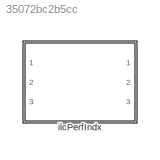
MODEL slx_35072bc2b5cc
KIND library
CONFIG AbsTol = auto
CONFIG EnableMultiTasking = off
CONFIG FixedStep = auto
CONFIG MaxStep = auto
CONFIG MinStep = auto
CONFIG RelTol = 1e-3
CONFIG SampleTimeConstraint = Unconstrained
CONFIG Solver = VariableStepAuto
CONFIG SolverName = VariableStepAuto
CONFIG StartTime = 0.0
CONFIG StopTime = 10.0
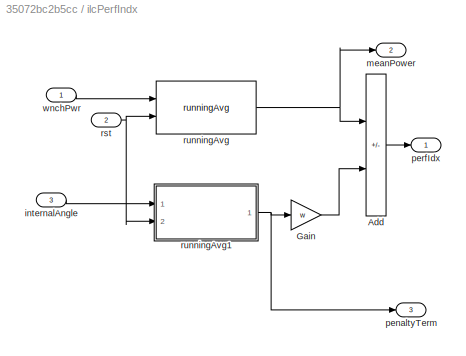
BLOCK [SubSystem] ilcPerfIndx
  Ports = [3, 3]
  RequestExecContextInheritance = off
BLOCK [Sum] ilcPerfIndx/Add
  IconShape = rectangular
  Inputs = +-
  Ports = [2, 1]
BLOCK [Gain] ilcPerfIndx/Gain
  Gain = w
BLOCK [Inport] ilcPerfIndx/internalAngle
  Port = 3
  PortDimensions = 1
BLOCK [Outport] ilcPerfIndx/meanPower
  Port = 2
  PortDimensions = 1
  VectorParamsAs1DForOutWhenUnconnected = off
BLOCK [Outport] ilcPerfIndx/penaltyTerm
  Port = 3
  PortDimensions = 1
  VectorParamsAs1DForOutWhenUnconnected = off
BLOCK [Outport] ilcPerfIndx/perfIdx
  PortDimensions = 1
  VectorParamsAs1DForOutWhenUnconnected = off
BLOCK [Inport] ilcPerfIndx/rst
  Port = 2
  PortDimensions = 1
BLOCK [Reference] ilcPerfIndx/runningAvg  REF=runningAvg_ul/runningAvg
  Ports = [2, 1]
  SourceBlock = runningAvg_ul/runningAvg
  SourceType = SubSystem
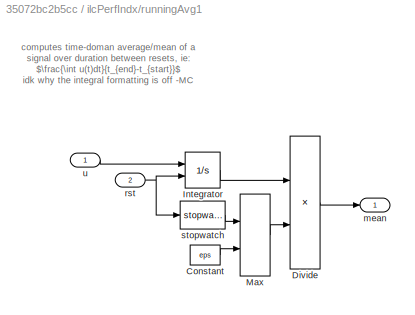
BLOCK [SubSystem] ilcPerfIndx/runningAvg1
  Ports = [2, 1]
  RequestExecContextInheritance = off
BLOCK [Constant] ilcPerfIndx/runningAvg1/Constant
  Value = eps
BLOCK [Product] ilcPerfIndx/runningAvg1/Divide
  Inputs = */
  Ports = [2, 1]
BLOCK [Integrator] ilcPerfIndx/runningAvg1/Integrator
  ExternalReset = rising
  Ports = [2, 1]
BLOCK [MinMax] ilcPerfIndx/runningAvg1/Max
  Function = max
  Inputs = 2
  Ports = [2, 1]
BLOCK [Outport] ilcPerfIndx/runningAvg1/mean
  VectorParamsAs1DForOutWhenUnconnected = off
BLOCK [Inport] ilcPerfIndx/runningAvg1/rst
  Port = 2
BLOCK [Reference] ilcPerfIndx/runningAvg1/stopwatch  REF=stopwatch_ul/stopwatch  (lib defined in slx_5231e8830116, slx_6b86a6863970)
  Ports = [1, 1]
  SourceBlock = stopwatch_ul/stopwatch
  SourceType = SubSystem
BLOCK [Inport] ilcPerfIndx/runningAvg1/u
BLOCK [Inport] ilcPerfIndx/wnchPwr
  PortDimensions = 1
ANNOTATION ilcPerfIndx/runningAvg1: computes time-doman average/mean of a signal over duration between resets, ie: $\frac{\int u(t)dt}{t_{end}-t_{start}}$ idk why the integral formatting is off -MC
LINE ilcPerfIndx/Add:1 -> ilcPerfIndx/perfIdx:1
LINE ilcPerfIndx/Gain:1 -> ilcPerfIndx/Add:2
LINE ilcPerfIndx/internalAngle:1 -> ilcPerfIndx/runningAvg1:1
NET ilcPerfIndx/rst:1 -> ilcPerfIndx/runningAvg1:2, ilcPerfIndx/runningAvg:2
LINE ilcPerfIndx/runningAvg1/Constant:1 -> ilcPerfIndx/runningAvg1/Max:2
LINE ilcPerfIndx/runningAvg1/Divide:1 -> ilcPerfIndx/runningAvg1/mean:1
LINE ilcPerfIndx/runningAvg1/Integrator:1 -> ilcPerfIndx/runningAvg1/Divide:1
LINE ilcPerfIndx/runningAvg1/Max:1 -> ilcPerfIndx/runningAvg1/Divide:2
NET ilcPerfIndx/runningAvg1/rst:1 -> ilcPerfIndx/runningAvg1/Integrator:2, ilcPerfIndx/runningAvg1/stopwatch:1
LINE ilcPerfIndx/runningAvg1/stopwatch:1 -> ilcPerfIndx/runningAvg1/Max:1
LINE ilcPerfIndx/runningAvg1/u:1 -> ilcPerfIndx/runningAvg1/Integrator:1
NET ilcPerfIndx/runningAvg1:1 -> ilcPerfIndx/Gain:1, ilcPerfIndx/penaltyTerm:1
NET ilcPerfIndx/runningAvg:1 -> ilcPerfIndx/Add:1, ilcPerfIndx/meanPower:1
LINE ilcPerfIndx/wnchPwr:1 -> ilcPerfIndx/runningAvg:1
note: NET lines group one-source signal fan-out (src -> all destinations, sorted); 1:1 wires keep LINE
